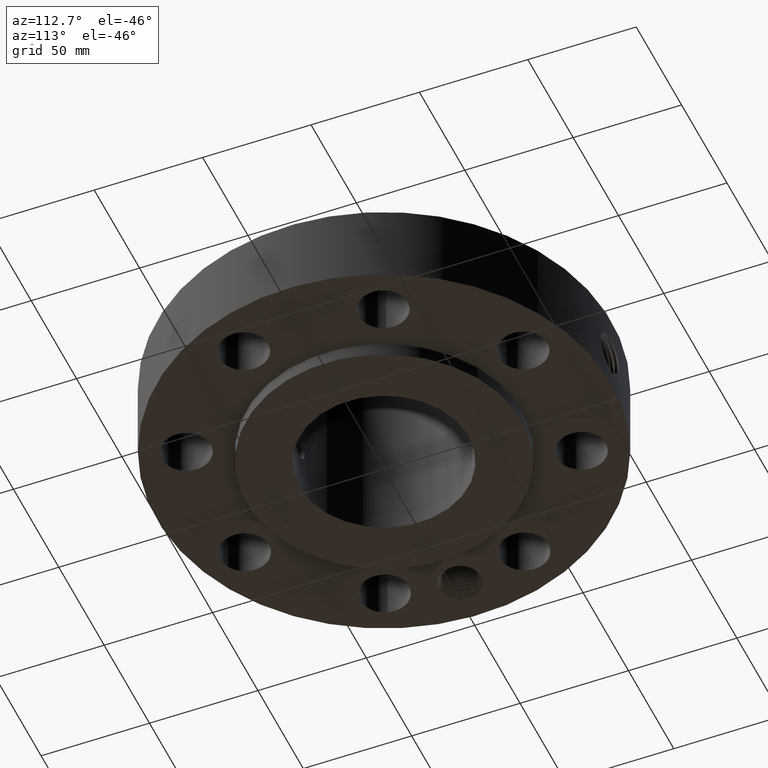
[diagram: clean part render]
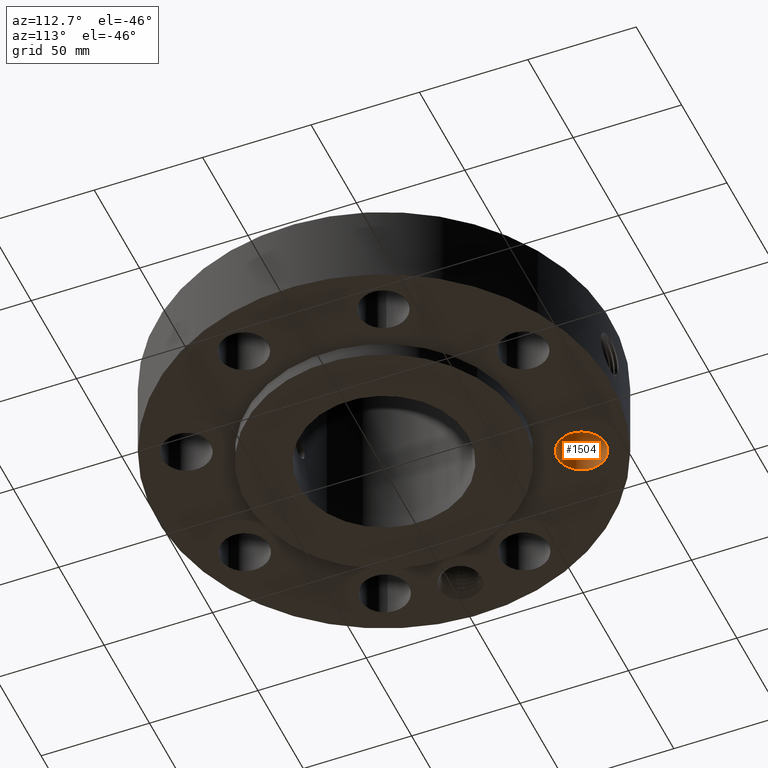
[diagram: same view with one face highlighted and labeled with its STEP entity id]
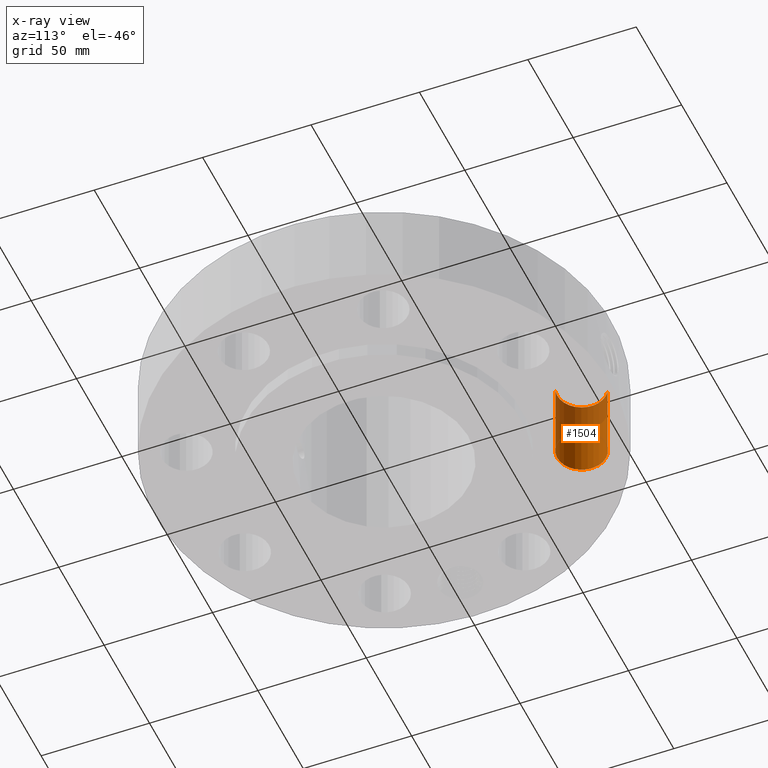
[diagram: x-ray of the same camera — body ghosted, the highlighted face saturated]
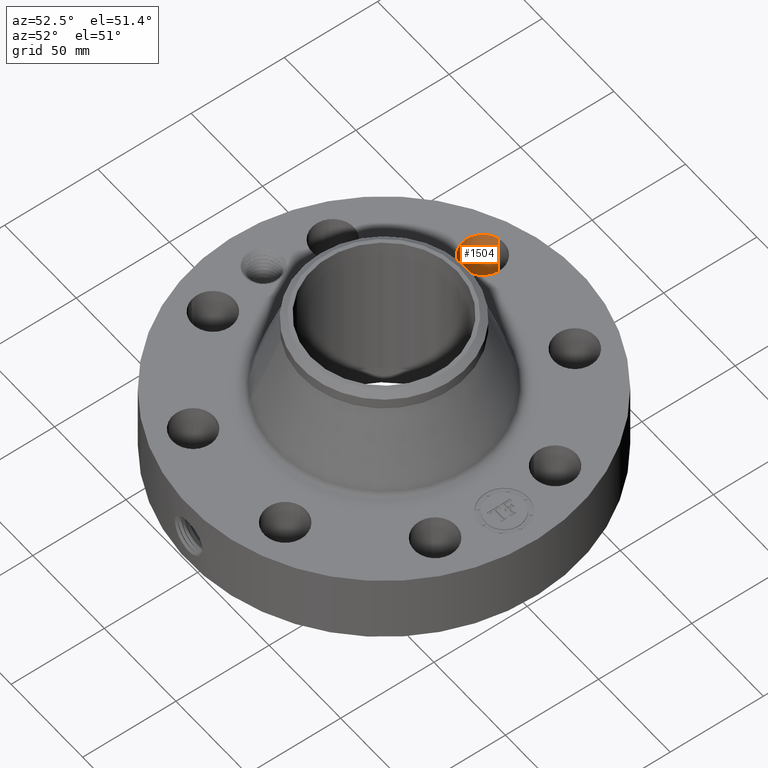
[diagram: same view with one face highlighted and labeled with its STEP entity id]
A machine part, auxiliary view. The second image highlights one B-rep face of the part: STEP entity #1504.
The next image is the same camera in x-ray: the body ghosted, the highlighted face saturated — about 36% of this face is hidden behind the body in this view.
A second angle (auxiliary view) of the same face is appended — the face is thin or edge-on in the first view.
In plain terms, the highlighted cylindrical surface (edge-blend (fillet) strip) has radius 11.176 mm, axis along (0, 0, -1).
Its self-contained STEP definition (entity closure, byte-faithful):
#332=AXIS2_PLACEMENT_3D('Circle Axis2P3D',#330,#331,$) ;
#658=AXIS2_PLACEMENT_3D('Circle Axis2P3D',#656,#657,$) ;
#1486=AXIS2_PLACEMENT_3D('Cylinder Axis2P3D',#1483,#1484,#1485) ;
#330=CARTESIAN_POINT('Axis2P3D Location',(-1.26668216113,3.05804125262,0.250000000001)) ;
#334=CARTESIAN_POINT('Vertex',(-1.14280476743,2.63583941543,0.250000000001)) ;
#336=CARTESIAN_POINT('Vertex',(-1.39055955484,3.48024308982,0.250000000001)) ;
#651=CARTESIAN_POINT('Vertex',(-1.39055955484,3.48024308982,1.75000000001)) ;
#653=CARTESIAN_POINT('Vertex',(-1.14280476743,2.63583941543,1.75000000001)) ;
#656=CARTESIAN_POINT('Axis2P3D Location',(-1.26668216113,3.05804125262,1.75000000001)) ;
#1483=CARTESIAN_POINT('Axis2P3D Location',(-1.26668216113,3.05804125262,1.74606299213)) ;
#1488=CARTESIAN_POINT('Line Origine',(-1.14280476743,2.63583941543,1.)) ;
#1493=CARTESIAN_POINT('Line Origine',(-1.39055955484,3.48024308982,1.)) ;
#331=DIRECTION('Axis2P3D Direction',(0.,0.,-0.0393700787402)) ;
#657=DIRECTION('Axis2P3D Direction',(0.,0.,-0.0393700787402)) ;
#1484=DIRECTION('Axis2P3D Direction',(0.,0.,-0.0393700787402)) ;
#1485=DIRECTION('Axis2P3D XDirection',(-0.0110842335096,0.0377775444876,0.)) ;
#1489=DIRECTION('Vector Direction',(0.,0.,-0.0393700787402)) ;
#1494=DIRECTION('Vector Direction',(0.,0.,-0.0393700787402)) ;
#1490=VECTOR('Line Direction',#1489,0.0393700787402) ;
#1495=VECTOR('Line Direction',#1494,0.0393700787402) ;
#1499=ORIENTED_EDGE('',*,*,#1492,.F.) ;
#1500=ORIENTED_EDGE('',*,*,#338,.T.) ;
#1501=ORIENTED_EDGE('',*,*,#1497,.T.) ;
#1502=ORIENTED_EDGE('',*,*,#660,.F.) ;
#1504=ADVANCED_FACE('PartBody',(#1503),#1487,.F.) ;
#333=CIRCLE('generated circle',#332,0.440000000002) ;
#659=CIRCLE('generated circle',#658,0.440000000002) ;
#1487=CYLINDRICAL_SURFACE('generated cylinder',#1486,0.440000000002) ;
#338=EDGE_CURVE('',#335,#337,#333,.T.) ;
#660=EDGE_CURVE('',#654,#652,#659,.T.) ;
#1492=EDGE_CURVE('',#335,#654,#1491,.F.) ;
#1497=EDGE_CURVE('',#337,#652,#1496,.F.) ;
#1498=EDGE_LOOP('',(#1499,#1500,#1501,#1502)) ;
#1503=FACE_OUTER_BOUND('',#1498,.T.) ;
#1491=LINE('Line',#1488,#1490) ;
#1496=LINE('Line',#1493,#1495) ;
#335=VERTEX_POINT('',#334) ;
#337=VERTEX_POINT('',#336) ;
#652=VERTEX_POINT('',#651) ;
#654=VERTEX_POINT('',#653) ;